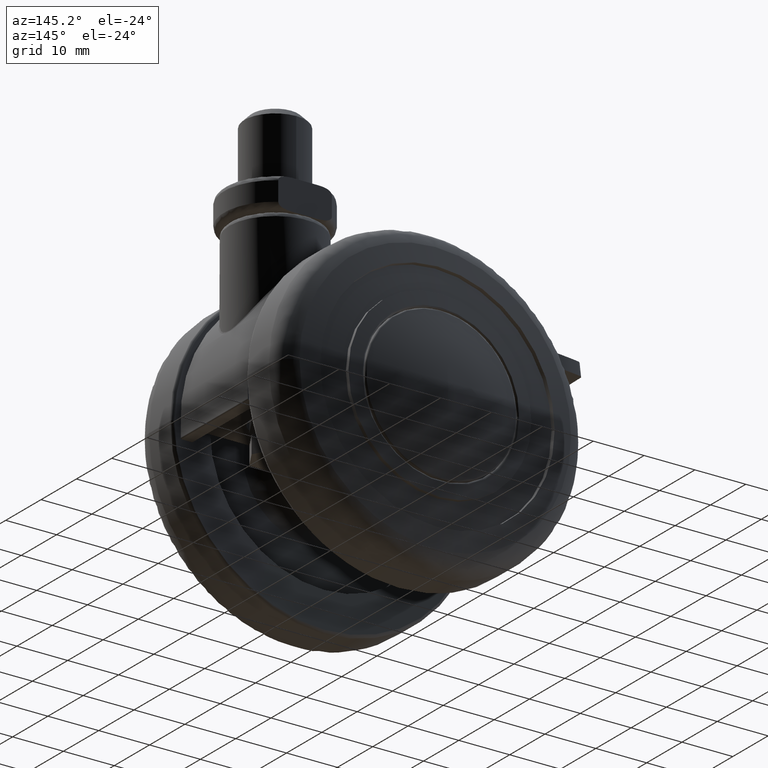
[diagram: clean part render]
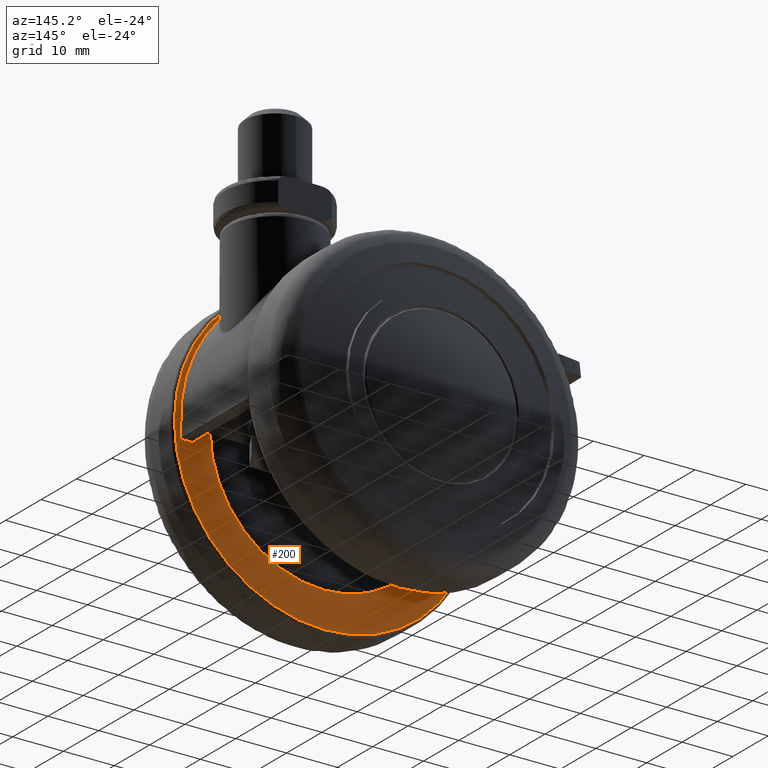
[diagram: same view with one face highlighted and labeled with its STEP entity id]
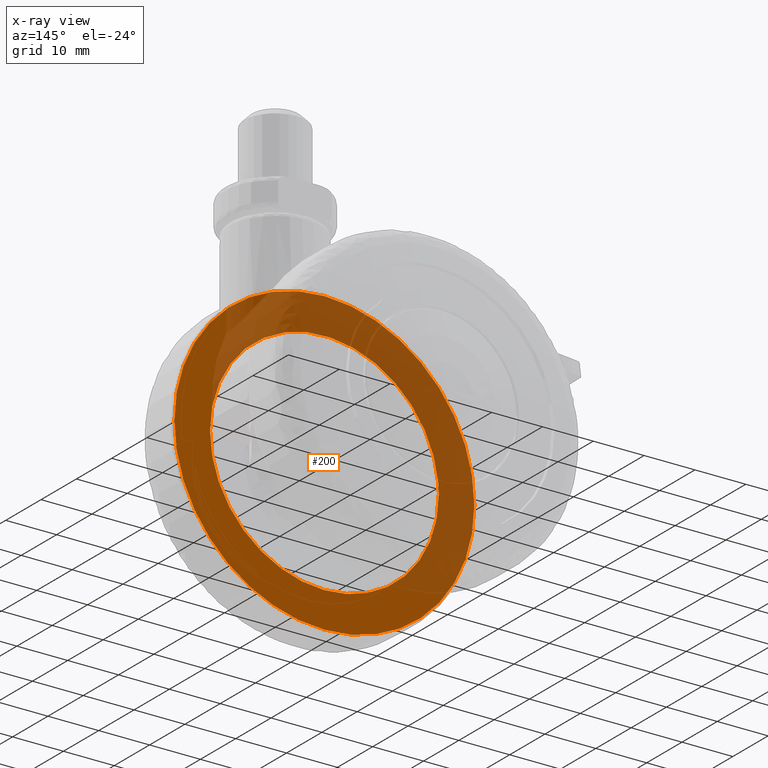
[diagram: x-ray of the same camera — body ghosted, the highlighted face saturated]
A machine part, auxiliary view. The second image highlights one B-rep face of the part: STEP entity #200.
The next image is the same camera in x-ray: the body ghosted, the highlighted face saturated — about 52% of this face is hidden behind the body in this view.
In plain terms, the highlighted planar face has unit normal (0, -1, 0).
Its self-contained STEP definition (entity closure, byte-faithful):
#200=ADVANCED_FACE('',(#468,#469),#467,.F.);
#467=PLANE('',#3077);
#468=FACE_OUTER_BOUND('',#3078,.T.);
#469=FACE_BOUND('',#3079,.T.);
#3074=CARTESIAN_POINT('',(-6.78500000000E+01,-6.10954988233E+01,2.00000000000E+00));
#3075=DIRECTION('',(0.00000000000E+00,0.00000000000E+00,1.00000000000E+00));
#3076=DIRECTION('',(1.00000000000E+00,0.00000000000E+00,0.00000000000E+00));
#3077=AXIS2_PLACEMENT_3D('',#3074,#3075,#3076);
#3078=EDGE_LOOP('',(#5812,#5813));
#3079=EDGE_LOOP('',(#5814,#5815,#5816));
#5812=ORIENTED_EDGE('',*,*,#6953,.T.);
#5813=ORIENTED_EDGE('',*,*,#6954,.T.);
#5814=ORIENTED_EDGE('',*,*,#6955,.F.);
#5815=ORIENTED_EDGE('',*,*,#6956,.F.);
#5816=ORIENTED_EDGE('',*,*,#6957,.F.);
#6953=EDGE_CURVE('',#7625,#7626,#7627,.T.);
#6954=EDGE_CURVE('',#7626,#7625,#7633,.T.);
#6955=EDGE_CURVE('',#7639,#7640,#7641,.T.);
#6956=EDGE_CURVE('',#7647,#7639,#7648,.T.);
#6957=EDGE_CURVE('',#7640,#7647,#7654,.T.);
#7625=VERTEX_POINT('',#11408);
#7626=VERTEX_POINT('',#11409);
#7627=CIRCLE('',#11413,2.95000000000E+01);
#7633=CIRCLE('',#11417,2.95000000000E+01);
#7639=VERTEX_POINT('',#11418);
#7640=VERTEX_POINT('',#11419);
#7641=CIRCLE('',#11423,2.25000000000E+01);
#7647=VERTEX_POINT('',#11424);
#7648=CIRCLE('',#11428,2.25000000000E+01);
#7654=CIRCLE('',#11432,2.25000000000E+01);
#11408=CARTESIAN_POINT('',(2.95000000000E+01,-3.07354836874E-17,2.00000000000E+00));
#11409=CARTESIAN_POINT('',(-2.95000000000E+01,-8.28966525053E-15,2.00000000000E+00));
#11410=CARTESIAN_POINT('',(0.00000000000E+00,0.00000000000E+00,2.00000000000E+00));
#11411=DIRECTION('',(0.00000000000E+00,0.00000000000E+00,-1.00000000000E+00));
#11412=DIRECTION('',(1.00000000000E+00,-1.23502516185E-16,-0.00000000000E+00));
#11413=AXIS2_PLACEMENT_3D('',#11410,#11411,#11412);
#11414=CARTESIAN_POINT('',(0.00000000000E+00,0.00000000000E+00,2.00000000000E+00));
#11415=DIRECTION('',(0.00000000000E+00,0.00000000000E+00,-1.00000000000E+00));
#11416=DIRECTION('',(1.00000000000E+00,-1.23502516185E-16,-0.00000000000E+00));
#11417=AXIS2_PLACEMENT_3D('',#11414,#11415,#11416);
#11418=CARTESIAN_POINT('',(-2.25000000000E+01,-8.03386126938E-08,2.00000000000E+00));
#11419=CARTESIAN_POINT('',(-2.23970834024E+01,2.14957090231E+00,2.00000000000E+00));
#11420=CARTESIAN_POINT('',(0.00000000000E+00,0.00000000000E+00,2.00000000000E+00));
#11421=DIRECTION('',(0.00000000000E+00,0.00000000000E+00,-1.00000000000E+00));
#11422=DIRECTION('',(-9.95425928997E-01,9.55364845470E-02,0.00000000000E+00));
#11423=AXIS2_PLACEMENT_3D('',#11420,#11421,#11422);
#11424=CARTESIAN_POINT('',(2.24999999999E+01,-5.45503734179E-05,2.00000000000E+00));
#11425=CARTESIAN_POINT('',(0.00000000000E+00,0.00000000000E+00,2.00000000000E+00));
#11426=DIRECTION('',(0.00000000000E+00,0.00000000000E+00,-1.00000000000E+00));
#11427=DIRECTION('',(-9.95425928997E-01,9.55364845470E-02,0.00000000000E+00));
#11428=AXIS2_PLACEMENT_3D('',#11425,#11426,#11427);
#11429=CARTESIAN_POINT('',(0.00000000000E+00,0.00000000000E+00,2.00000000000E+00));
#11430=DIRECTION('',(0.00000000000E+00,0.00000000000E+00,-1.00000000000E+00));
#11431=DIRECTION('',(-9.95425928997E-01,9.55364845470E-02,0.00000000000E+00));
#11432=AXIS2_PLACEMENT_3D('',#11429,#11430,#11431);